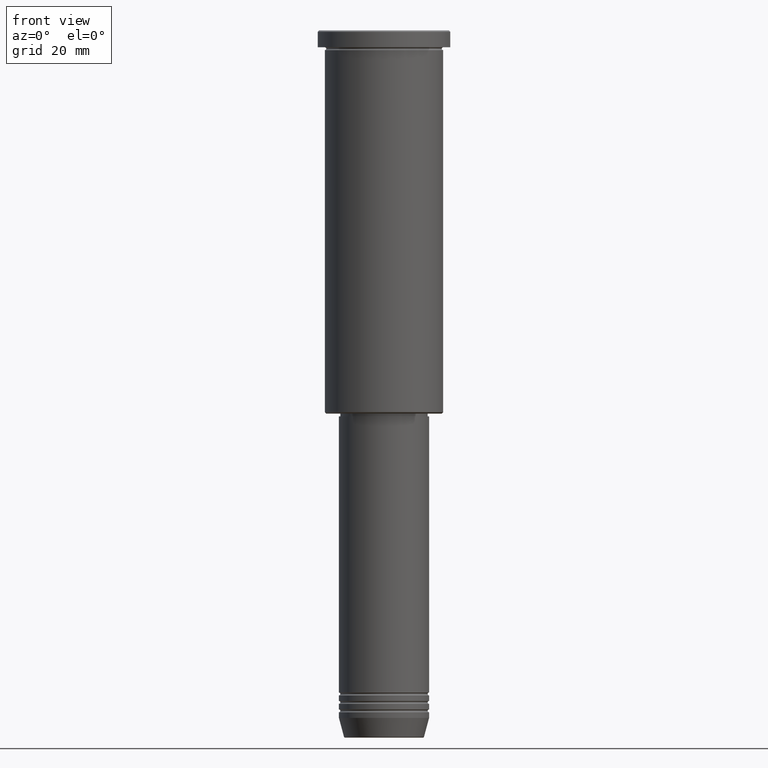
[diagram: clean part render]
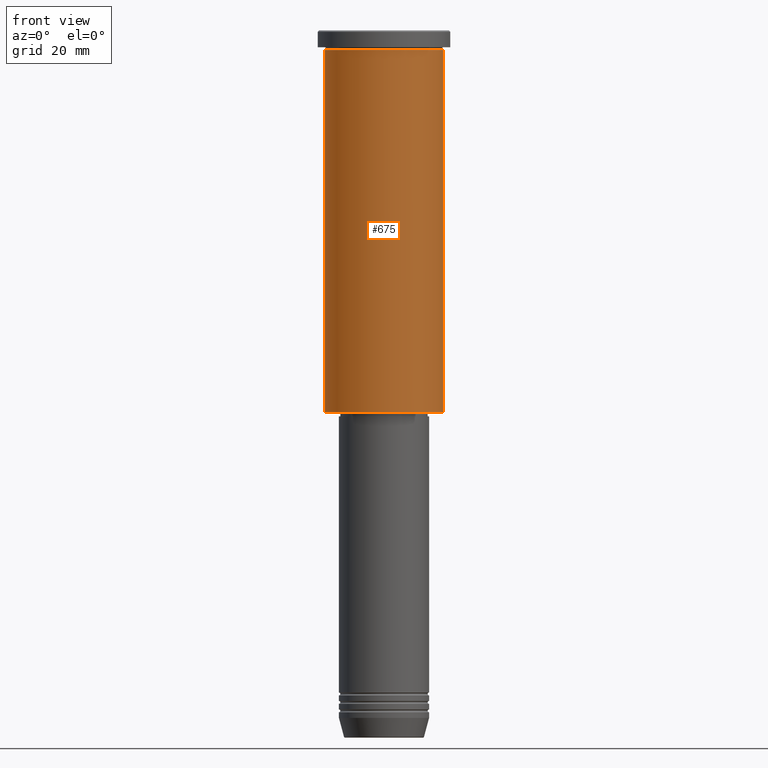
[diagram: same view with one face highlighted and labeled with its STEP entity id]
A machine part, front view. The second image highlights one B-rep face of the part: STEP entity #675.
In plain terms, the highlighted cylindrical surface (partial cylindrical patch) has radius 21 mm, axis along (-0, -0, 1).
Its self-contained STEP definition (entity closure, byte-faithful):
#10 = FACE_OUTER_BOUND ( 'NONE', #377, .T. ) ;
#59 = AXIS2_PLACEMENT_3D ( 'NONE', #789, #261, #1154 ) ;
#94 = CARTESIAN_POINT ( 'NONE',  ( 21.00000000000000000, 0.000000000000000000, -6.999999999999994671 ) ) ;
#98 = CARTESIAN_POINT ( 'NONE',  ( -21.00000000000000000, 2.571758278209441661E-15, -135.5000000000000000 ) ) ;
#100 = EDGE_CURVE ( 'NONE', #716, #838, #430, .T. ) ;
#159 = DIRECTION ( 'NONE',  ( -0.000000000000000000, -0.000000000000000000, 1.000000000000000000 ) ) ;
#172 = CARTESIAN_POINT ( 'NONE',  ( 21.00000000000000000, 0.000000000000000000, -135.5000000000000000 ) ) ;
#180 = ORIENTED_EDGE ( 'NONE', *, *, #963, .F. ) ;
#187 = AXIS2_PLACEMENT_3D ( 'NONE', #940, #424, #317 ) ;
#193 = CYLINDRICAL_SURFACE ( 'NONE', #985, 21.00000000000000000 ) ;
#261 = DIRECTION ( 'NONE',  ( -0.000000000000000000, -0.000000000000000000, 1.000000000000000000 ) ) ;
#292 = EDGE_CURVE ( 'NONE', #716, #497, #966, .T. ) ;
#317 = DIRECTION ( 'NONE',  ( -1.000000000000000000, 0.000000000000000000, 0.000000000000000000 ) ) ;
#377 = EDGE_LOOP ( 'NONE', ( #809, #495, #746, #180 ) ) ;
#380 = VECTOR ( 'NONE', #443, 1000.000000000000000 ) ;
#424 = DIRECTION ( 'NONE',  ( -0.000000000000000000, -0.000000000000000000, 1.000000000000000000 ) ) ;
#430 = LINE ( 'NONE', #1171, #380 ) ;
#443 = DIRECTION ( 'NONE',  ( -0.000000000000000000, -0.000000000000000000, 1.000000000000000000 ) ) ;
#479 = DIRECTION ( 'NONE',  ( -0.000000000000000000, -0.000000000000000000, 1.000000000000000000 ) ) ;
#488 = EDGE_CURVE ( 'NONE', #497, #708, #980, .T. ) ;
#495 = ORIENTED_EDGE ( 'NONE', *, *, #292, .T. ) ;
#497 = VERTEX_POINT ( 'NONE', #172 ) ;
#548 = CARTESIAN_POINT ( 'NONE',  ( 0.000000000000000000, 0.000000000000000000, 0.000000000000000000 ) ) ;
#672 = CARTESIAN_POINT ( 'NONE',  ( -21.00000000000000000, 2.571758278209441661E-15, -6.999999999999994671 ) ) ;
#675 = ADVANCED_FACE ( 'NONE', ( #10 ), #193, .T. ) ;
#708 = VERTEX_POINT ( 'NONE', #94 ) ;
#715 = CARTESIAN_POINT ( 'NONE',  ( 21.00000000000000000, 0.000000000000000000, 0.000000000000000000 ) ) ;
#716 = VERTEX_POINT ( 'NONE', #98 ) ;
#746 = ORIENTED_EDGE ( 'NONE', *, *, #488, .T. ) ;
#789 = CARTESIAN_POINT ( 'NONE',  ( 0.000000000000000000, 0.000000000000000000, -6.999999999999994671 ) ) ;
#809 = ORIENTED_EDGE ( 'NONE', *, *, #100, .F. ) ;
#838 = VERTEX_POINT ( 'NONE', #672 ) ;
#911 = DIRECTION ( 'NONE',  ( 1.000000000000000000, 0.000000000000000000, 0.000000000000000000 ) ) ;
#940 = CARTESIAN_POINT ( 'NONE',  ( 0.000000000000000000, 0.000000000000000000, -135.5000000000000000 ) ) ;
#963 = EDGE_CURVE ( 'NONE', #838, #708, #1123, .T. ) ;
#966 = CIRCLE ( 'NONE', #187, 21.00000000000000000 ) ;
#980 = LINE ( 'NONE', #715, #1179 ) ;
#985 = AXIS2_PLACEMENT_3D ( 'NONE', #548, #479, #911 ) ;
#1123 = CIRCLE ( 'NONE', #59, 21.00000000000000000 ) ;
#1154 = DIRECTION ( 'NONE',  ( 1.000000000000000000, 0.000000000000000000, 0.000000000000000000 ) ) ;
#1171 = CARTESIAN_POINT ( 'NONE',  ( -21.00000000000000000, 2.571758278209441661E-15, 0.000000000000000000 ) ) ;
#1179 = VECTOR ( 'NONE', #159, 1000.000000000000000 ) ;